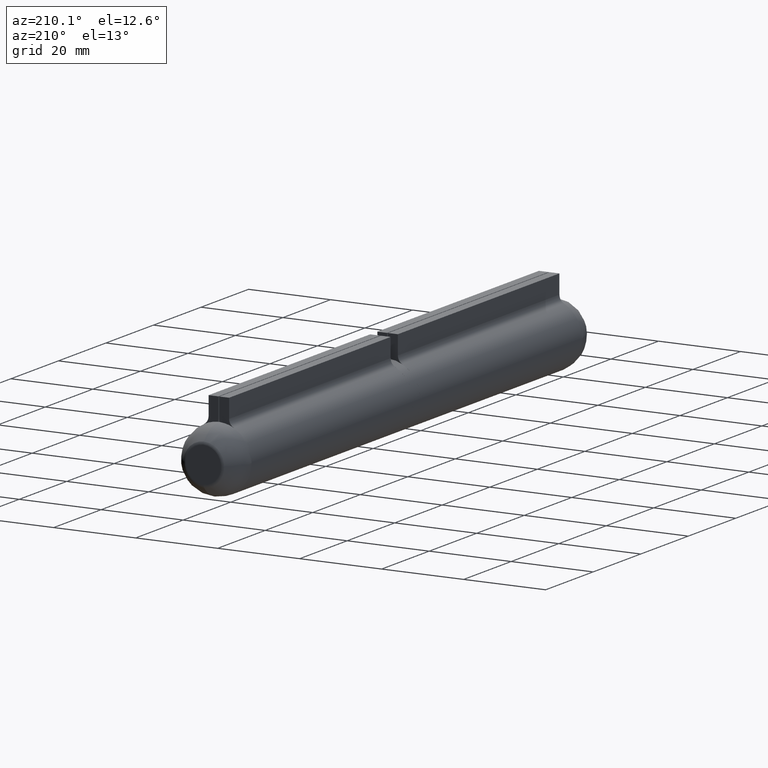
[diagram: clean part render]
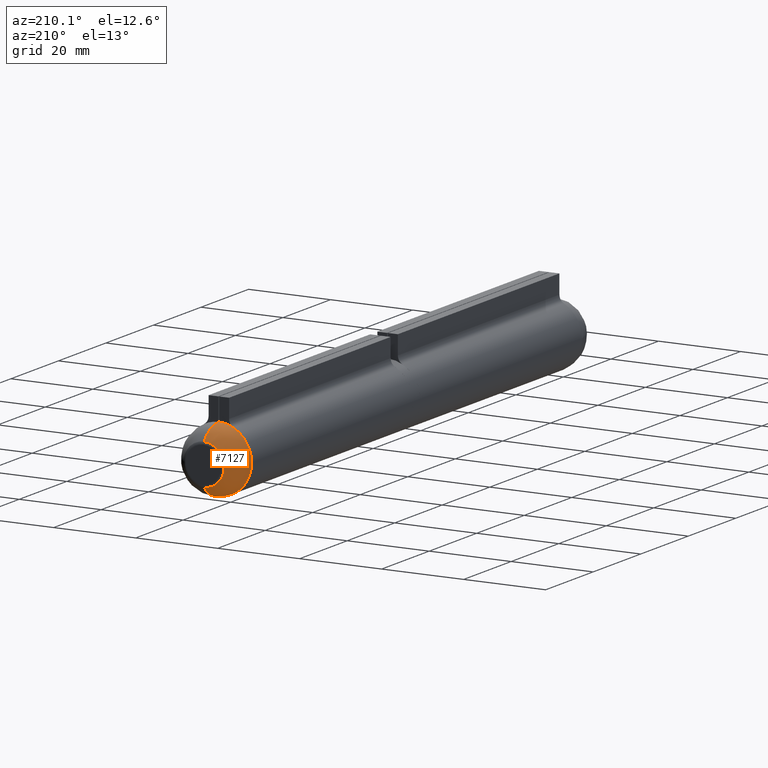
[diagram: same view with one face highlighted and labeled with its STEP entity id]
A machine part, auxiliary view. The second image highlights one B-rep face of the part: STEP entity #7127.
In plain terms, the highlighted spherical surface has radius 8 mm.
Its self-contained STEP definition (entity closure, byte-faithful):
#33 = CARTESIAN_POINT ( 'NONE',  ( 0.000000000000000000, 34.00000000000000000, 0.000000000000000000 ) ) ;
#157 = SPHERICAL_SURFACE ( 'NONE', #3012, 7.999999999999998224 ) ;
#542 = DIRECTION ( 'NONE',  ( -1.224646799147353207E-16, 0.000000000000000000, 1.000000000000000000 ) ) ;
#561 = VERTEX_POINT ( 'NONE', #8555 ) ;
#766 = EDGE_CURVE ( 'NONE', #12667, #6797, #3151, .T. ) ;
#897 = DIRECTION ( 'NONE',  ( 0.000000000000000000, 0.000000000000000000, -1.000000000000000000 ) ) ;
#1690 = FACE_OUTER_BOUND ( 'NONE', #2816, .T. ) ;
#1871 = ORIENTED_EDGE ( 'NONE', *, *, #4083, .T. ) ;
#2271 = DIRECTION ( 'NONE',  ( 0.000000000000000000, 1.000000000000000000, 0.000000000000000000 ) ) ;
#2459 = VERTEX_POINT ( 'NONE', #7936 ) ;
#2727 = DIRECTION ( 'NONE',  ( 0.000000000000000000, 0.000000000000000000, -1.000000000000000000 ) ) ;
#2814 = CARTESIAN_POINT ( 'NONE',  ( 0.000000000000000000, 34.00000000000000000, 0.000000000000000000 ) ) ;
#2816 = EDGE_LOOP ( 'NONE', ( #10189, #3580, #9032, #9428, #1871, #7128 ) ) ;
#3012 = AXIS2_PLACEMENT_3D ( 'NONE', #12734, #10625, #897 ) ;
#3042 = DIRECTION ( 'NONE',  ( -0.000000000000000000, 1.000000000000000000, -0.000000000000000000 ) ) ;
#3151 = CIRCLE ( 'NONE', #10008, 7.999999999999998224 ) ;
#3239 = CARTESIAN_POINT ( 'NONE',  ( 0.000000000000000000, 34.00000000000000000, 0.000000000000000000 ) ) ;
#3362 = EDGE_CURVE ( 'NONE', #12547, #2459, #5142, .T. ) ;
#3580 = ORIENTED_EDGE ( 'NONE', *, *, #3362, .T. ) ;
#3944 = EDGE_CURVE ( 'NONE', #6797, #12547, #7048, .T. ) ;
#4083 = EDGE_CURVE ( 'NONE', #561, #12667, #5298, .T. ) ;
#4364 = CARTESIAN_POINT ( 'NONE',  ( -0.2000104767073338508, 34.00000000000000000, 7.997499347246443513 ) ) ;
#4623 = DIRECTION ( 'NONE',  ( 1.000000000000000000, 0.000000000000000000, 0.000000000000000000 ) ) ;
#5068 = CARTESIAN_POINT ( 'NONE',  ( -3.599999999999999201, 34.00000000000000000, 7.144228439796701302 ) ) ;
#5142 = CIRCLE ( 'NONE', #6738, 7.999999999999998224 ) ;
#5298 = CIRCLE ( 'NONE', #6306, 7.999999999999998224 ) ;
#6306 = AXIS2_PLACEMENT_3D ( 'NONE', #3239, #2271, #10144 ) ;
#6331 = AXIS2_PLACEMENT_3D ( 'NONE', #2814, #4623, #2727 ) ;
#6415 = CIRCLE ( 'NONE', #6483, 4.948716593053945623 ) ;
#6483 = AXIS2_PLACEMENT_3D ( 'NONE', #10555, #9665, #12612 ) ;
#6738 = AXIS2_PLACEMENT_3D ( 'NONE', #8453, #7543, #542 ) ;
#6791 = CIRCLE ( 'NONE', #6331, 7.999999999999998224 ) ;
#6797 = VERTEX_POINT ( 'NONE', #4364 ) ;
#7047 = DIRECTION ( 'NONE',  ( 0.000000000000000000, 0.000000000000000000, 1.000000000000000000 ) ) ;
#7048 = CIRCLE ( 'NONE', #10492, 7.999999999999998224 ) ;
#7097 = CARTESIAN_POINT ( 'NONE',  ( 0.000000000000000000, 40.28571428571428470, -4.948716593053945623 ) ) ;
#7127 = ADVANCED_FACE ( 'NONE', ( #1690 ), #157, .T. ) ;
#7128 = ORIENTED_EDGE ( 'NONE', *, *, #766, .T. ) ;
#7543 = DIRECTION ( 'NONE',  ( -1.000000000000000000, -0.000000000000000000, -1.224646799147353207E-16 ) ) ;
#7936 = CARTESIAN_POINT ( 'NONE',  ( -7.928802164374868341E-16, 40.28571428571428470, 4.948716593053945623 ) ) ;
#8013 = EDGE_CURVE ( 'NONE', #2459, #8250, #6415, .T. ) ;
#8250 = VERTEX_POINT ( 'NONE', #7097 ) ;
#8453 = CARTESIAN_POINT ( 'NONE',  ( 0.000000000000000000, 34.00000000000000000, 0.000000000000000000 ) ) ;
#8555 = CARTESIAN_POINT ( 'NONE',  ( 0.000000000000000000, 34.00000000000000000, -7.999999999999998224 ) ) ;
#8916 = DIRECTION ( 'NONE',  ( 0.000000000000000000, 0.000000000000000000, 1.000000000000000000 ) ) ;
#9032 = ORIENTED_EDGE ( 'NONE', *, *, #8013, .T. ) ;
#9428 = ORIENTED_EDGE ( 'NONE', *, *, #11542, .F. ) ;
#9665 = DIRECTION ( 'NONE',  ( 0.000000000000000000, -1.000000000000000000, 0.000000000000000000 ) ) ;
#10008 = AXIS2_PLACEMENT_3D ( 'NONE', #12737, #3042, #7047 ) ;
#10144 = DIRECTION ( 'NONE',  ( 0.000000000000000000, 0.000000000000000000, 1.000000000000000000 ) ) ;
#10189 = ORIENTED_EDGE ( 'NONE', *, *, #3944, .T. ) ;
#10492 = AXIS2_PLACEMENT_3D ( 'NONE', #33, #11962, #8916 ) ;
#10555 = CARTESIAN_POINT ( 'NONE',  ( 0.000000000000000000, 40.28571428571428470, 0.000000000000000000 ) ) ;
#10625 = DIRECTION ( 'NONE',  ( -1.000000000000000000, 0.000000000000000000, -0.000000000000000000 ) ) ;
#11542 = EDGE_CURVE ( 'NONE', #561, #8250, #6791, .T. ) ;
#11962 = DIRECTION ( 'NONE',  ( -0.000000000000000000, 1.000000000000000000, -0.000000000000000000 ) ) ;
#12547 = VERTEX_POINT ( 'NONE', #12699 ) ;
#12612 = DIRECTION ( 'NONE',  ( 0.000000000000000000, 0.000000000000000000, -1.000000000000000000 ) ) ;
#12667 = VERTEX_POINT ( 'NONE', #5068 ) ;
#12699 = CARTESIAN_POINT ( 'NONE',  ( -9.797174393178823685E-16, 34.00000000000000000, 7.999999999999998224 ) ) ;
#12734 = CARTESIAN_POINT ( 'NONE',  ( 0.000000000000000000, 34.00000000000000000, 0.000000000000000000 ) ) ;
#12737 = CARTESIAN_POINT ( 'NONE',  ( 0.000000000000000000, 34.00000000000000000, 0.000000000000000000 ) ) ;